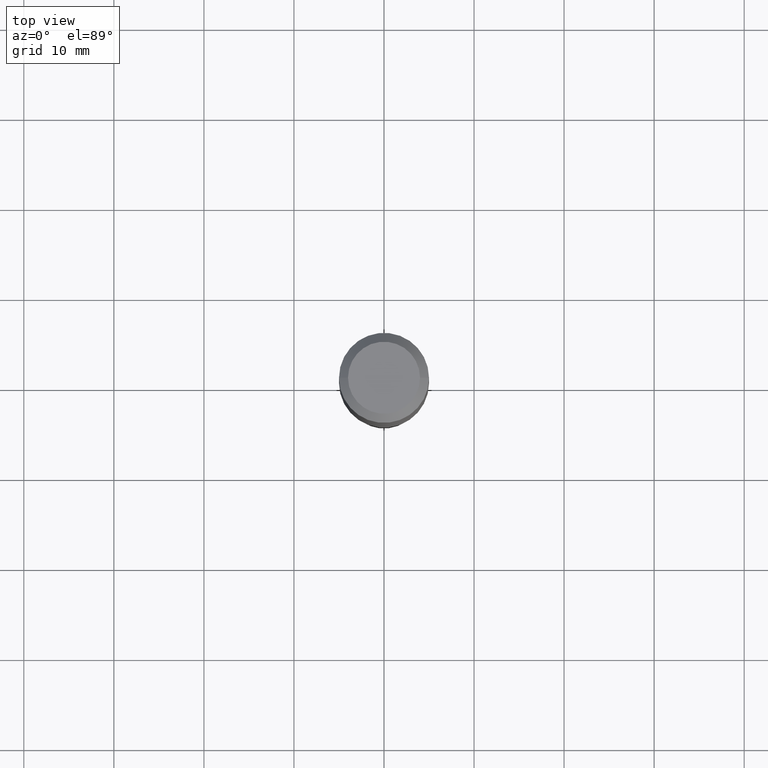
[diagram: clean part render]
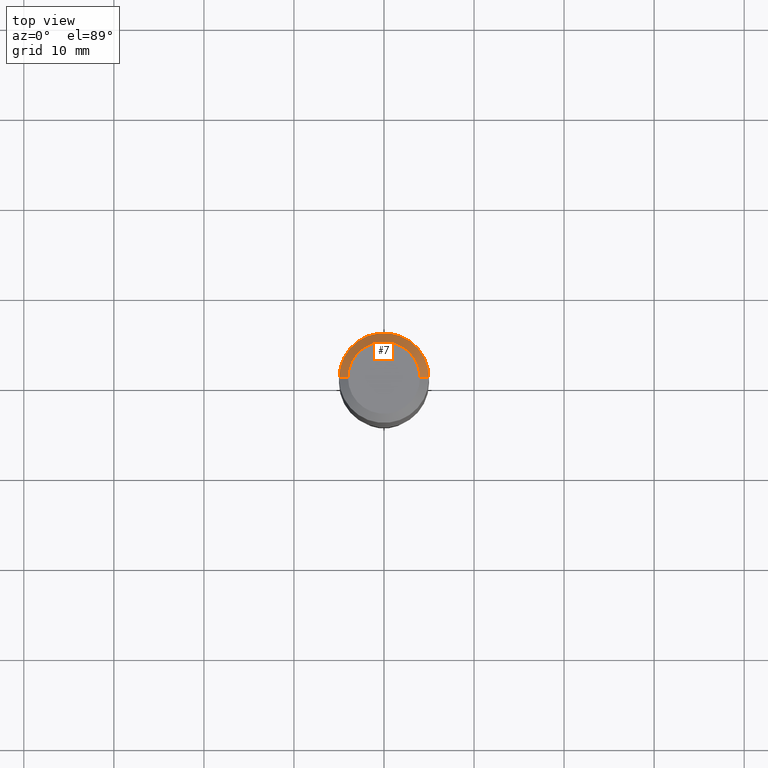
[diagram: same view with one face highlighted and labeled with its STEP entity id]
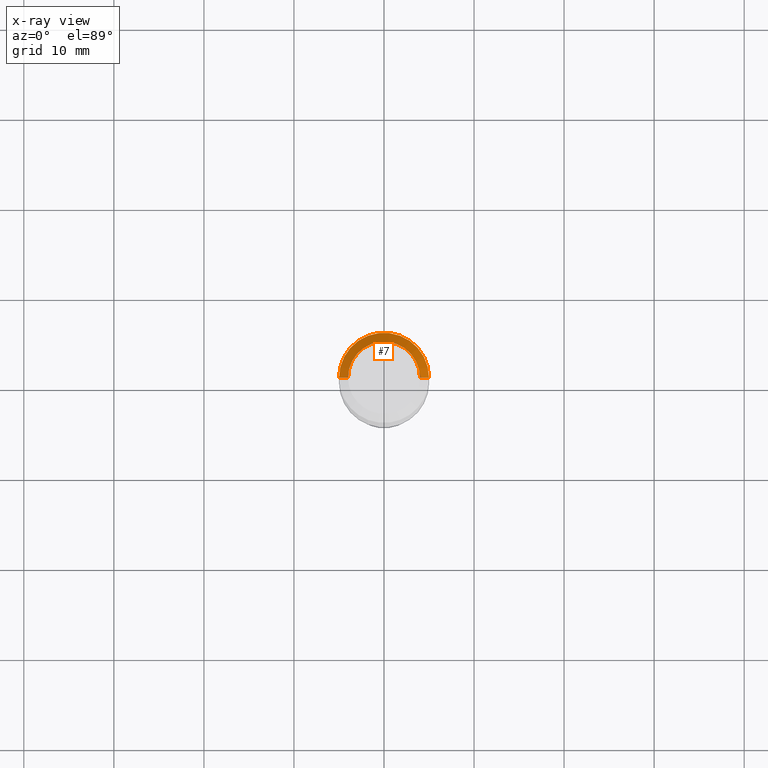
[diagram: x-ray of the same camera — body ghosted, the highlighted face saturated]
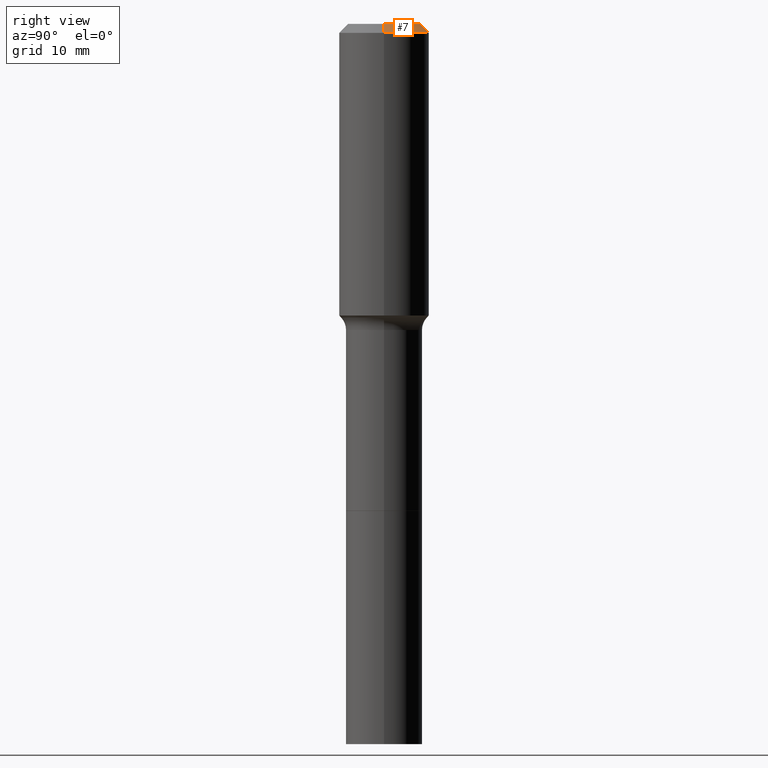
[diagram: same view with one face highlighted and labeled with its STEP entity id]
A machine part, top view. The second image highlights one B-rep face of the part: STEP entity #7.
The next image is the same camera in x-ray: the body ghosted, the highlighted face saturated — about 0% of this face is hidden behind the body in this view.
A second angle (right view) of the same face is appended — the face is thin or edge-on in the first view.
In plain terms, the highlighted conical surface has half-angle 45 deg.
Its self-contained STEP definition (entity closure, byte-faithful):
#2 = VECTOR ( 'NONE', #107, 39.37007874015748143 ) ;
#7 = ADVANCED_FACE ( 'NONE', ( #344 ), #459, .T. ) ;
#10 = CIRCLE ( 'NONE', #20, 0.1574800000000000089 ) ;
#14 = EDGE_CURVE ( 'NONE', #294, #92, #341, .T. ) ;
#20 = AXIS2_PLACEMENT_3D ( 'NONE', #49, #352, #88 ) ;
#33 = DIRECTION ( 'NONE',  ( 0.7071067811865452413, -7.319954787623248157E-15, -0.7071067811865497932 ) ) ;
#49 = CARTESIAN_POINT ( 'NONE',  ( -9.427742298522567634E-47, 1.346031739168368355E-32, 3.855188123715870730E-18 ) ) ;
#55 = CARTESIAN_POINT ( 'NONE',  ( -0.1574800000000000089, 1.168406772637159815E-15, 3.855188123707939751E-18 ) ) ;
#76 = CARTESIAN_POINT ( 'NONE',  ( 0.1968500000000000527, -1.512055823412797583E-15, -0.03937000000000030059 ) ) ;
#84 = EDGE_CURVE ( 'NONE', #174, #294, #10, .T. ) ;
#88 = DIRECTION ( 'NONE',  ( 1.000000000000000000, -6.982962677686265922E-15, 4.876223630392693006E-29 ) ) ;
#92 = VERTEX_POINT ( 'NONE', #283 ) ;
#98 = AXIS2_PLACEMENT_3D ( 'NONE', #474, #232, #504 ) ;
#106 = AXIS2_PLACEMENT_3D ( 'NONE', #186, #503, #233 ) ;
#107 = DIRECTION ( 'NONE',  ( -0.7071067811865452413, 2.468850131082233000E-15, -0.7071067811865497932 ) ) ;
#118 = LINE ( 'NONE', #507, #289 ) ;
#142 = ORIENTED_EDGE ( 'NONE', *, *, #84, .F. ) ;
#148 = CARTESIAN_POINT ( 'NONE',  ( -0.1968500000000000527, 1.237136582792286422E-15, -0.03937000000000030059 ) ) ;
#154 = VERTEX_POINT ( 'NONE', #76 ) ;
#174 = VERTEX_POINT ( 'NONE', #441 ) ;
#186 = CARTESIAN_POINT ( 'NONE',  ( 9.627810689950955906E-31, -1.374596203102556794E-16, -0.03937000000000030059 ) ) ;
#231 = EDGE_LOOP ( 'NONE', ( #142, #312, #390, #445 ) ) ;
#232 = DIRECTION ( 'NONE',  ( -2.445468806185136597E-29, 3.491481338843145583E-15, 1.000000000000000000 ) ) ;
#233 = DIRECTION ( 'NONE',  ( -1.000000000000000000, 6.982962677686266711E-15, 0.000000000000000000 ) ) ;
#283 = CARTESIAN_POINT ( 'NONE',  ( -0.1968500000000000527, -8.965417567679217455E-16, -0.03937000000000030059 ) ) ;
#289 = VECTOR ( 'NONE', #33, 39.37007874015748143 ) ;
#294 = VERTEX_POINT ( 'NONE', #55 ) ;
#312 = ORIENTED_EDGE ( 'NONE', *, *, #351, .T. ) ;
#339 = CIRCLE ( 'NONE', #98, 0.1968500000000000527 ) ;
#341 = LINE ( 'NONE', #148, #2 ) ;
#343 = EDGE_CURVE ( 'NONE', #154, #92, #339, .T. ) ;
#344 = FACE_OUTER_BOUND ( 'NONE', #231, .T. ) ;
#351 = EDGE_CURVE ( 'NONE', #174, #154, #118, .T. ) ;
#352 = DIRECTION ( 'NONE',  ( -2.445468806185136597E-29, 3.491481338843145583E-15, 1.000000000000000000 ) ) ;
#390 = ORIENTED_EDGE ( 'NONE', *, *, #343, .T. ) ;
#441 = CARTESIAN_POINT ( 'NONE',  ( 0.1574800000000000089, -1.284169937930321386E-15, 3.855188123724205385E-18 ) ) ;
#445 = ORIENTED_EDGE ( 'NONE', *, *, #14, .F. ) ;
#459 = CONICAL_SURFACE ( 'NONE', #106, 0.1968500000000000527, 0.7853981633974450594 ) ;
#474 = CARTESIAN_POINT ( 'NONE',  ( 9.627810689950955906E-31, -1.374596203102556794E-16, -0.03937000000000030059 ) ) ;
#503 = DIRECTION ( 'NONE',  ( 2.445468806185136597E-29, -3.491481338843145583E-15, -1.000000000000000000 ) ) ;
#504 = DIRECTION ( 'NONE',  ( 1.000000000000000000, -6.982962677686266711E-15, 0.000000000000000000 ) ) ;
#507 = CARTESIAN_POINT ( 'NONE',  ( 0.1968500000000000527, -1.487948651171581996E-15, -0.03937000000000030059 ) ) ;